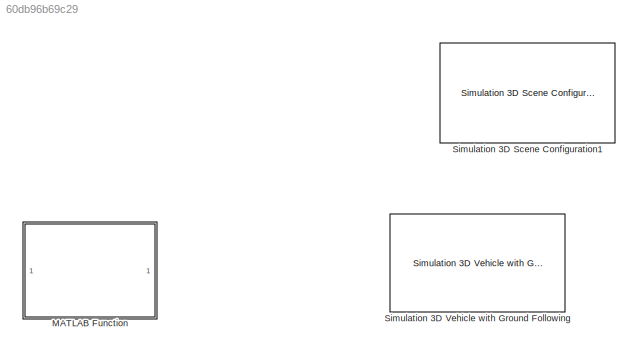
MODEL slx_60db96b69c29
KIND model
CONFIG AbsTol = auto
CONFIG EnableMultiTasking = off
CONFIG FixedStep = auto
CONFIG MaxStep = auto
CONFIG MinStep = auto
CONFIG RelTol = 1e-3
CONFIG SampleTimeConstraint = Unconstrained
CONFIG SolverName = FixedStepDiscrete
CONFIG StartTime = 0.0
CONFIG StopTime = 10.0
WORKSPACE source: mxarray member
WORKSPACE firstWarning = 1
WORKSPACE originalScenarioChecksum = '0FA6558D509BC7BD481F436FBA94739B'
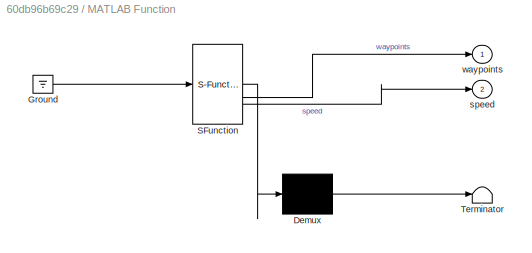
BLOCK [SubSystem] MATLAB Function
  ErrorFcn = Stateflow.Translate.translate
  LibrarySourceBlock = simulink/User-Defined\nFunctions/MATLAB Function
  PermitHierarchicalResolution = ExplicitOnly
  SFBlockType = MATLAB Function
  TreatAsAtomicUnit = on
BLOCK [Demux] MATLAB Function/ Demux 
  Outputs = 1
BLOCK [Ground] MATLAB Function/ Ground 
BLOCK [S-Function] MATLAB Function/ SFunction 
  EnableBusSupport = off
  FunctionName = sf_sfun
  PortCounts = [1 3]
  SFcnIsStateOwnerBlock = off
  SFunctionDeploymentMode = off
  Tag = Stateflow S-Function 2
BLOCK [Terminator] MATLAB Function/ Terminator 
BLOCK [Outport] MATLAB Function/speed
  Port = 2
BLOCK [Outport] MATLAB Function/waypoints
BLOCK [Reference] Simulation 3D Scene Configuration1  REF=sim3dlib/Simulation 3D Scene Configuration
  LibrarySourceBlock = drivingsim3d/Simulation 3D Scene Configuration
  Priority = 0
  SourceBlock = sim3dlib/Simulation 3D Scene Configuration
  SourceType = Simulation 3D Scene Configuration
BLOCK [Reference] Simulation 3D Vehicle with Ground Following  REF=sim3dautolib/Simulation 3D Vehicle with Ground Following
  LibrarySourceBlock = drivingsim3d/Simulation 3D Vehicle with Ground Following
  Priority = -1
  SourceBlock = sim3dautolib/Simulation 3D Vehicle with Ground Following
  SourceType = Simulation 3D Vehicle with Ground Following
CHART MATLAB Function states=1 transitions=1
  STATE_LABEL 'eML_blk_kernel()'
  STATE_LABEL 'SCRIPT:\nfunction [waypoints, speed] = changeLangeLeftWaypoints()\n% createDrivingScenario Returns the drivingScenario defined in the Designer\n\n% Generated by MATLAB(R) 9.14 (R2023a) and Automated Driving Toolbox 3.7 (R2023a).\n% Generated on: 09-Aug-2023 13:02:59\n\nwaypoints = [-5.93127627606 -2.20895520317019 0;\n    5.3 -1.6 0;\n    14.8 0.9 0;\n    24.7 1.4 0;\n    33.7 1.4 0];\nspeed = [50;50;50;50;50...<+80ch>'
CHART  states=0 transitions=0
